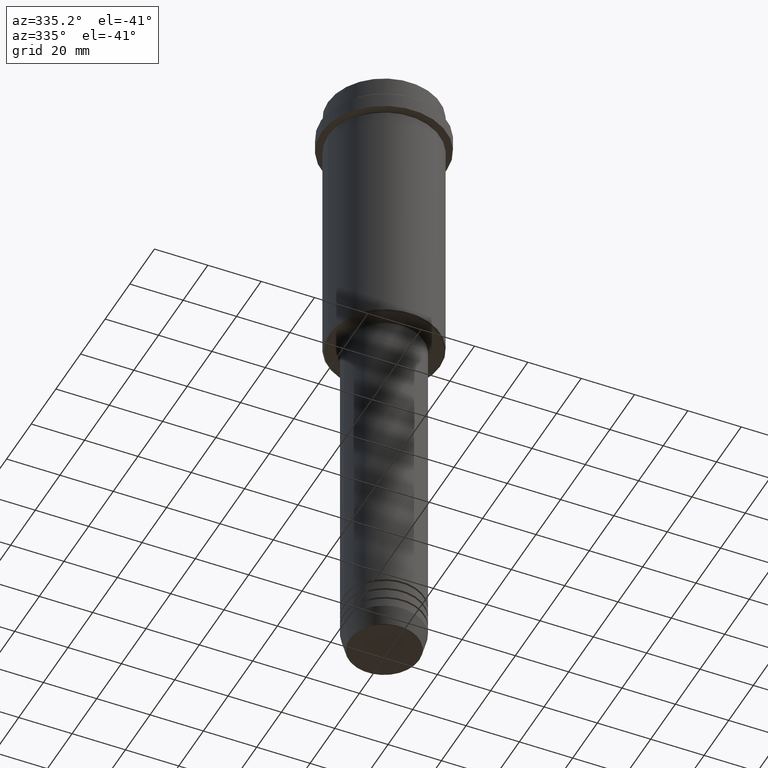
[diagram: clean part render]
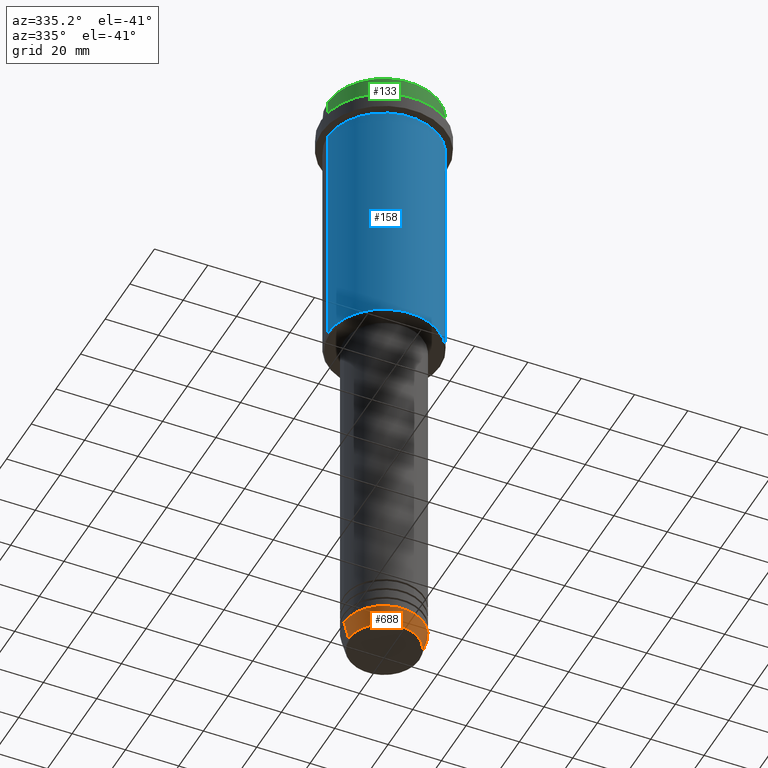
[diagram: same view with three faces highlighted in distinct colors, each labeled with its STEP entity id]
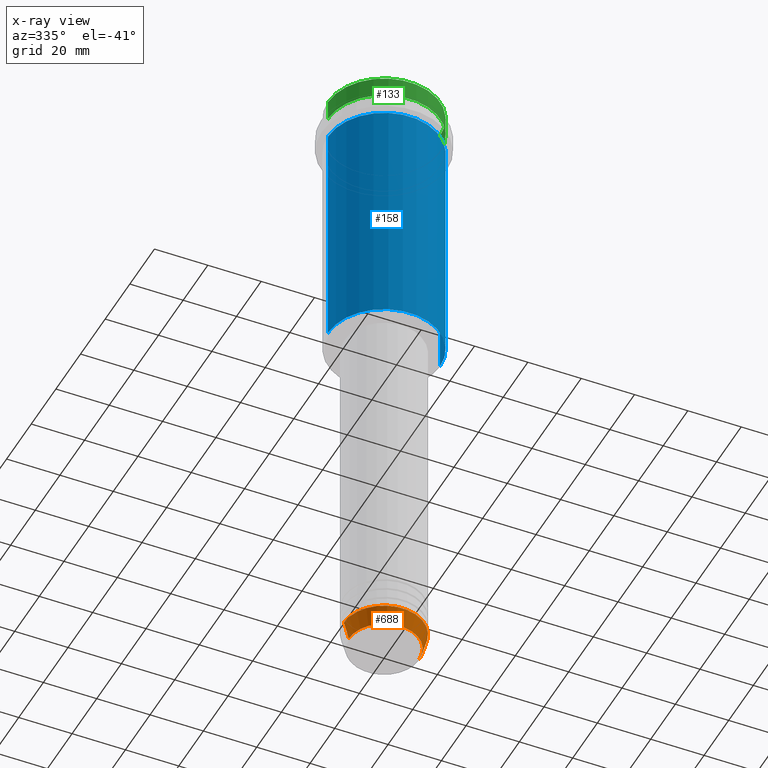
[diagram: x-ray of the same camera — body ghosted, the three highlighted faces saturated]
A machine part, auxiliary view with three faces highlighted in distinct colors.
The next image is the same camera in x-ray (body ghosted, the three faces saturated) — at least one of them is partly hidden behind the body in this view.
Their STEP definitions:

[orange] entity #688 — the highlighted conical surface has half-angle 15 deg.
#3 = CARTESIAN_POINT ( 'NONE',  ( -13.22365507213720015, 1.728200442216588780E-15, -239.6294095225513274 ) ) ;
#8 = CIRCLE ( 'NONE', #1287, 15.00000000000000000 ) ;
#15 = LINE ( 'NONE', #200, #875 ) ;
#39 = DIRECTION ( 'NONE',  ( -0.000000000000000000, -0.000000000000000000, 1.000000000000000000 ) ) ;
#52 = CONICAL_SURFACE ( 'NONE', #944, 15.00000000000000000, 0.2617993877991491303 ) ;
#126 = CARTESIAN_POINT ( 'NONE',  ( 0.000000000000000000, 0.000000000000000000, -233.0000000000000284 ) ) ;
#146 = CARTESIAN_POINT ( 'NONE',  ( 0.000000000000000000, 0.000000000000000000, -233.0000000000000284 ) ) ;
#179 = VERTEX_POINT ( 'NONE', #3 ) ;
#200 = CARTESIAN_POINT ( 'NONE',  ( -15.00000000000000000, 1.836970198721029589E-15, -233.0000000000000284 ) ) ;
#204 = CARTESIAN_POINT ( 'NONE',  ( -15.00000000000000000, 1.836970198721029589E-15, -233.0000000000000284 ) ) ;
#217 = CARTESIAN_POINT ( 'NONE',  ( 15.00000000000000000, 0.000000000000000000, -233.0000000000000284 ) ) ;
#345 = VECTOR ( 'NONE', #869, 1000.000000000000114 ) ;
#349 = DIRECTION ( 'NONE',  ( 1.000000000000000000, 0.000000000000000000, 0.000000000000000000 ) ) ;
#353 = CARTESIAN_POINT ( 'NONE',  ( 0.000000000000000000, 0.000000000000000000, -239.6294095225513274 ) ) ;
#376 = FACE_OUTER_BOUND ( 'NONE', #820, .T. ) ;
#492 = CARTESIAN_POINT ( 'NONE',  ( 15.00000000000000000, 0.000000000000000000, -233.0000000000000284 ) ) ;
#609 = EDGE_CURVE ( 'NONE', #179, #956, #986, .T. ) ;
#632 = CARTESIAN_POINT ( 'NONE',  ( 13.22365507213720015, 0.000000000000000000, -239.6294095225513274 ) ) ;
#644 = DIRECTION ( 'NONE',  ( -0.000000000000000000, -0.000000000000000000, 1.000000000000000000 ) ) ;
#688 = ADVANCED_FACE ( 'NONE', ( #376 ), #52, .T. ) ;
#766 = DIRECTION ( 'NONE',  ( -0.2588190451025205174, 3.169619151431761243E-17, 0.9659258262890684232 ) ) ;
#793 = VERTEX_POINT ( 'NONE', #492 ) ;
#820 = EDGE_LOOP ( 'NONE', ( #1175, #1139, #1045, #1210 ) ) ;
#869 = DIRECTION ( 'NONE',  ( 0.2588190451025205174, 0.000000000000000000, 0.9659258262890684232 ) ) ;
#873 = EDGE_CURVE ( 'NONE', #179, #954, #15, .T. ) ;
#875 = VECTOR ( 'NONE', #766, 1000.000000000000114 ) ;
#895 = LINE ( 'NONE', #217, #345 ) ;
#944 = AXIS2_PLACEMENT_3D ( 'NONE', #146, #39, #349 ) ;
#952 = EDGE_CURVE ( 'NONE', #954, #793, #8, .T. ) ;
#954 = VERTEX_POINT ( 'NONE', #204 ) ;
#956 = VERTEX_POINT ( 'NONE', #632 ) ;
#986 = CIRCLE ( 'NONE', #1308, 13.22365507213720015 ) ;
#1045 = ORIENTED_EDGE ( 'NONE', *, *, #1196, .T. ) ;
#1138 = DIRECTION ( 'NONE',  ( 1.000000000000000000, 0.000000000000000000, 0.000000000000000000 ) ) ;
#1139 = ORIENTED_EDGE ( 'NONE', *, *, #609, .T. ) ;
#1144 = DIRECTION ( 'NONE',  ( -0.000000000000000000, -0.000000000000000000, 1.000000000000000000 ) ) ;
#1175 = ORIENTED_EDGE ( 'NONE', *, *, #873, .F. ) ;
#1184 = DIRECTION ( 'NONE',  ( 1.000000000000000000, 0.000000000000000000, 0.000000000000000000 ) ) ;
#1196 = EDGE_CURVE ( 'NONE', #956, #793, #895, .T. ) ;
#1210 = ORIENTED_EDGE ( 'NONE', *, *, #952, .F. ) ;
#1287 = AXIS2_PLACEMENT_3D ( 'NONE', #126, #644, #1184 ) ;
#1308 = AXIS2_PLACEMENT_3D ( 'NONE', #353, #1144, #1138 ) ;

[blue] entity #158 — the highlighted cylindrical surface (partial cylindrical patch) has radius 21 mm, axis along (-0, -0, 1).
#9 = LINE ( 'NONE', #985, #189 ) ;
#16 = EDGE_CURVE ( 'NONE', #910, #1173, #43, .T. ) ;
#43 = LINE ( 'NONE', #710, #95 ) ;
#95 = VECTOR ( 'NONE', #915, 1000.000000000000000 ) ;
#106 = CARTESIAN_POINT ( 'NONE',  ( 0.000000000000000000, 0.000000000000000000, 0.000000000000000000 ) ) ;
#158 = ADVANCED_FACE ( 'NONE', ( #653 ), #662, .T. ) ;
#163 = CIRCLE ( 'NONE', #847, 20.99999999999999645 ) ;
#188 = DIRECTION ( 'NONE',  ( -0.000000000000000000, -0.000000000000000000, 1.000000000000000000 ) ) ;
#189 = VECTOR ( 'NONE', #417, 1000.000000000000000 ) ;
#193 = EDGE_CURVE ( 'NONE', #938, #910, #1007, .T. ) ;
#320 = CARTESIAN_POINT ( 'NONE',  ( 0.000000000000000000, 0.000000000000000000, -104.5000000000000426 ) ) ;
#414 = EDGE_CURVE ( 'NONE', #1054, #1173, #163, .T. ) ;
#417 = DIRECTION ( 'NONE',  ( -0.000000000000000000, -0.000000000000000000, 1.000000000000000000 ) ) ;
#617 = DIRECTION ( 'NONE',  ( 1.000000000000000000, 0.000000000000000000, 0.000000000000000000 ) ) ;
#653 = FACE_OUTER_BOUND ( 'NONE', #812, .T. ) ;
#657 = CARTESIAN_POINT ( 'NONE',  ( 20.99999999999999645, 0.000000000000000000, -104.5000000000000426 ) ) ;
#662 = CYLINDRICAL_SURFACE ( 'NONE', #1331, 20.99999999999999645 ) ;
#710 = CARTESIAN_POINT ( 'NONE',  ( 20.99999999999999645, 0.000000000000000000, 0.000000000000000000 ) ) ;
#770 = DIRECTION ( 'NONE',  ( -1.000000000000000000, 0.000000000000000000, 0.000000000000000000 ) ) ;
#812 = EDGE_LOOP ( 'NONE', ( #918, #891, #1004, #1086 ) ) ;
#847 = AXIS2_PLACEMENT_3D ( 'NONE', #1166, #188, #617 ) ;
#887 = DIRECTION ( 'NONE',  ( -0.000000000000000000, -0.000000000000000000, 1.000000000000000000 ) ) ;
#891 = ORIENTED_EDGE ( 'NONE', *, *, #193, .T. ) ;
#906 = EDGE_CURVE ( 'NONE', #938, #1054, #9, .T. ) ;
#910 = VERTEX_POINT ( 'NONE', #657 ) ;
#915 = DIRECTION ( 'NONE',  ( -0.000000000000000000, -0.000000000000000000, 1.000000000000000000 ) ) ;
#918 = ORIENTED_EDGE ( 'NONE', *, *, #906, .F. ) ;
#938 = VERTEX_POINT ( 'NONE', #1312 ) ;
#975 = DIRECTION ( 'NONE',  ( -0.000000000000000000, -0.000000000000000000, 1.000000000000000000 ) ) ;
#985 = CARTESIAN_POINT ( 'NONE',  ( -20.99999999999999645, 2.571758278209441267E-15, 0.000000000000000000 ) ) ;
#993 = CARTESIAN_POINT ( 'NONE',  ( 20.99999999999999645, 0.000000000000000000, -16.00000000000000355 ) ) ;
#1004 = ORIENTED_EDGE ( 'NONE', *, *, #16, .T. ) ;
#1007 = CIRCLE ( 'NONE', #1188, 20.99999999999999645 ) ;
#1054 = VERTEX_POINT ( 'NONE', #1118 ) ;
#1086 = ORIENTED_EDGE ( 'NONE', *, *, #414, .F. ) ;
#1118 = CARTESIAN_POINT ( 'NONE',  ( -20.99999999999999645, 2.571758278209441267E-15, -16.00000000000000355 ) ) ;
#1166 = CARTESIAN_POINT ( 'NONE',  ( 0.000000000000000000, 0.000000000000000000, -16.00000000000000355 ) ) ;
#1173 = VERTEX_POINT ( 'NONE', #993 ) ;
#1188 = AXIS2_PLACEMENT_3D ( 'NONE', #320, #887, #770 ) ;
#1312 = CARTESIAN_POINT ( 'NONE',  ( -20.99999999999999645, 2.571758278209441267E-15, -104.5000000000000426 ) ) ;
#1331 = AXIS2_PLACEMENT_3D ( 'NONE', #106, #975, #1338 ) ;
#1338 = DIRECTION ( 'NONE',  ( 1.000000000000000000, 0.000000000000000000, 0.000000000000000000 ) ) ;

[green] entity #133 — the highlighted cylindrical surface (partial cylindrical patch) has radius 21 mm, axis along (-0, -0, 1).
#61 = CARTESIAN_POINT ( 'NONE',  ( -20.99999999999999645, 2.571758278209441267E-15, -0.5000000000000073275 ) ) ;
#109 = ORIENTED_EDGE ( 'NONE', *, *, #771, .T. ) ;
#113 = DIRECTION ( 'NONE',  ( 1.000000000000000000, 0.000000000000000000, 0.000000000000000000 ) ) ;
#133 = ADVANCED_FACE ( 'NONE', ( #1206 ), #335, .T. ) ;
#194 = VERTEX_POINT ( 'NONE', #340 ) ;
#199 = ORIENTED_EDGE ( 'NONE', *, *, #628, .T. ) ;
#210 = DIRECTION ( 'NONE',  ( 1.000000000000000000, 0.000000000000000000, 0.000000000000000000 ) ) ;
#229 = DIRECTION ( 'NONE',  ( -0.000000000000000000, -0.000000000000000000, 1.000000000000000000 ) ) ;
#230 = AXIS2_PLACEMENT_3D ( 'NONE', #1090, #229, #113 ) ;
#236 = AXIS2_PLACEMENT_3D ( 'NONE', #881, #744, #210 ) ;
#250 = ORIENTED_EDGE ( 'NONE', *, *, #1226, .F. ) ;
#263 = CARTESIAN_POINT ( 'NONE',  ( 20.99999999999999645, 0.000000000000000000, 0.000000000000000000 ) ) ;
#279 = EDGE_LOOP ( 'NONE', ( #250, #681, #199, #109 ) ) ;
#292 = CARTESIAN_POINT ( 'NONE',  ( -20.99999999999999645, 2.571758278209441267E-15, -7.999999999999998224 ) ) ;
#295 = VERTEX_POINT ( 'NONE', #61 ) ;
#335 = CYLINDRICAL_SURFACE ( 'NONE', #230, 20.99999999999999645 ) ;
#340 = CARTESIAN_POINT ( 'NONE',  ( 20.99999999999999645, 0.000000000000000000, -7.999999999999998224 ) ) ;
#342 = CARTESIAN_POINT ( 'NONE',  ( -20.99999999999999645, 2.571758278209441267E-15, 0.000000000000000000 ) ) ;
#513 = CARTESIAN_POINT ( 'NONE',  ( 0.000000000000000000, 0.000000000000000000, -0.5000000000000073275 ) ) ;
#528 = DIRECTION ( 'NONE',  ( -0.000000000000000000, -0.000000000000000000, 1.000000000000000000 ) ) ;
#575 = LINE ( 'NONE', #263, #1356 ) ;
#583 = VERTEX_POINT ( 'NONE', #652 ) ;
#628 = EDGE_CURVE ( 'NONE', #194, #583, #575, .T. ) ;
#652 = CARTESIAN_POINT ( 'NONE',  ( 20.99999999999999645, 0.000000000000000000, -0.5000000000000073275 ) ) ;
#681 = ORIENTED_EDGE ( 'NONE', *, *, #1258, .T. ) ;
#703 = AXIS2_PLACEMENT_3D ( 'NONE', #513, #953, #1390 ) ;
#744 = DIRECTION ( 'NONE',  ( -0.000000000000000000, -0.000000000000000000, 1.000000000000000000 ) ) ;
#758 = VERTEX_POINT ( 'NONE', #292 ) ;
#771 = EDGE_CURVE ( 'NONE', #583, #295, #965, .T. ) ;
#881 = CARTESIAN_POINT ( 'NONE',  ( 0.000000000000000000, 0.000000000000000000, -7.999999999999998224 ) ) ;
#953 = DIRECTION ( 'NONE',  ( 0.000000000000000000, 0.000000000000000000, -1.000000000000000000 ) ) ;
#965 = CIRCLE ( 'NONE', #703, 20.99999999999999645 ) ;
#1016 = DIRECTION ( 'NONE',  ( -0.000000000000000000, -0.000000000000000000, 1.000000000000000000 ) ) ;
#1037 = VECTOR ( 'NONE', #528, 1000.000000000000000 ) ;
#1090 = CARTESIAN_POINT ( 'NONE',  ( 0.000000000000000000, 0.000000000000000000, 0.000000000000000000 ) ) ;
#1152 = CIRCLE ( 'NONE', #236, 20.99999999999999645 ) ;
#1189 = LINE ( 'NONE', #342, #1037 ) ;
#1206 = FACE_OUTER_BOUND ( 'NONE', #279, .T. ) ;
#1226 = EDGE_CURVE ( 'NONE', #758, #295, #1189, .T. ) ;
#1258 = EDGE_CURVE ( 'NONE', #758, #194, #1152, .T. ) ;
#1356 = VECTOR ( 'NONE', #1016, 1000.000000000000000 ) ;
#1390 = DIRECTION ( 'NONE',  ( 1.000000000000000000, 0.000000000000000000, 0.000000000000000000 ) ) ;